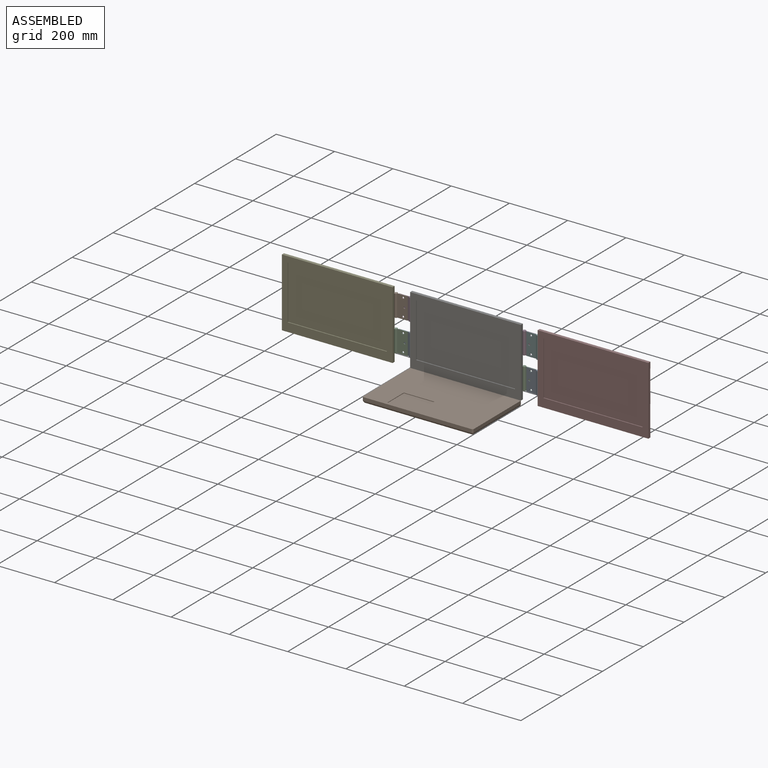
[diagram: assembled view]
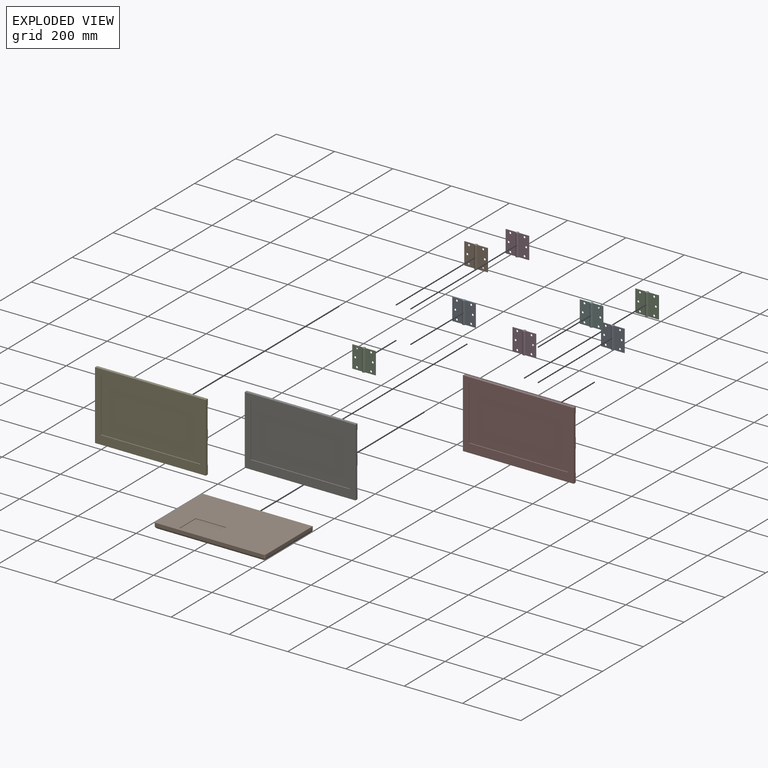
[diagram: exploded view]
GUIDED TOUR — MATED ASSEMBLY (Onshape document 534b0cb7e22ac7e6372c0f38, AutoMate assembly 534b0cb7e22ac7e6372c0f38_f17c7b90aa69325668de5390_352277028fc11308c769b280_default)

This assembly has 12 components, labeled P0..P11 below (a component is one placed occurrence of a part; the same part can appear more than once), held together by 11 mates. A mate is a constraint between two components; its type names the relative motion it leaves free:
  FASTENED — locks the two components together rigidly (no relative motion),
  REVOLUTE — leaves rotation about the listed axis free (a hinge).
Axis/direction vectors are unit vectors and 'through' points are millimeter coordinates, both in the assembly's world frame.

MATES
  1. FASTENED "Fastened 3": P11 <-> P5, direction (0.000, -1.000, 0.000) through (57.84, -117.65, 276.85) mm
  2. FASTENED "Fastened 10": P4 <-> P1, direction (0.000, 1.000, 0.000) through (-445.39, -119.65, 284.85) mm
  3. FASTENED "Fastened 2": P0 <-> P7, direction (0.000, -1.000, 0.000) through (122.25, -119.65, 174.85) mm
  4. FASTENED "Fastened 4": P3 <-> P1, direction (0.000, -1.000, 0.000) through (-380.98, -117.65, 276.85) mm
  5. FASTENED "Fastened 1": P7 <-> P5, direction (0.000, 1.000, 0.000) through (122.25, -119.65, 284.85) mm
  6. REVOLUTE "Revolute 1": P6 <-> P9, axis (-1.000, 0.000, 0.000) through (-351.57, -126.65, 69.85) mm
  7. FASTENED "Fastened 9": P0 <-> P2, direction (0.000, -1.000, 0.000) through (57.84, -117.65, 107.85) mm
  8. FASTENED "Fastened 8": P10 <-> P4, direction (-1.000, 0.000, 0.000) through (-445.39, -119.65, 99.85) mm
  9. FASTENED "Fastened 6": P3 <-> P6, direction (0.000, -1.000, 0.000) through (-316.57, -117.65, 284.85) mm
  10. FASTENED "Fastened 5": P11 <-> P6, direction (0.000, -1.000, 0.000) through (-6.57, -117.65, 284.85) mm
  11. FASTENED "Fastened 7": P8 <-> P6, direction (0.000, -1.000, 0.000) through (-316.57, -117.65, 174.85) mm

ASSEMBLY ORDER
  1. P11 — the base component [order verified]
  2. P3 [order verified]
  3. P8 [order verified]
  4. P2 [order verified]
  5. P10 [order verified]
  6. P5 [order verified]
  7. P1 [order verified]
  8. P0 [order verified]
  9. P6 [order verified]
  10. P4 [order verified]
  11. P7 [order verified]
  12. P9 [order verified]
Order-tag legend:
  [order verified] — this step's position reverses a verified removal order: the component was checked to insert without passing through the ones already placed.

Of the 12 components, 12 carry the full construction recipe — the FeatureScript program that regenerates the part's solid from scratch; the rest are supplied as boundary geometry only.
Each toured component is shown spotlighted twice — in the assembled view, then in the exploded view, where a leader line traces a displaced component back to its assembled socket (saturated green if recipe-attached, orange if geometry-only; every other component desaturated gray) — followed by its recipe or geometry summary and the mates that hold it.
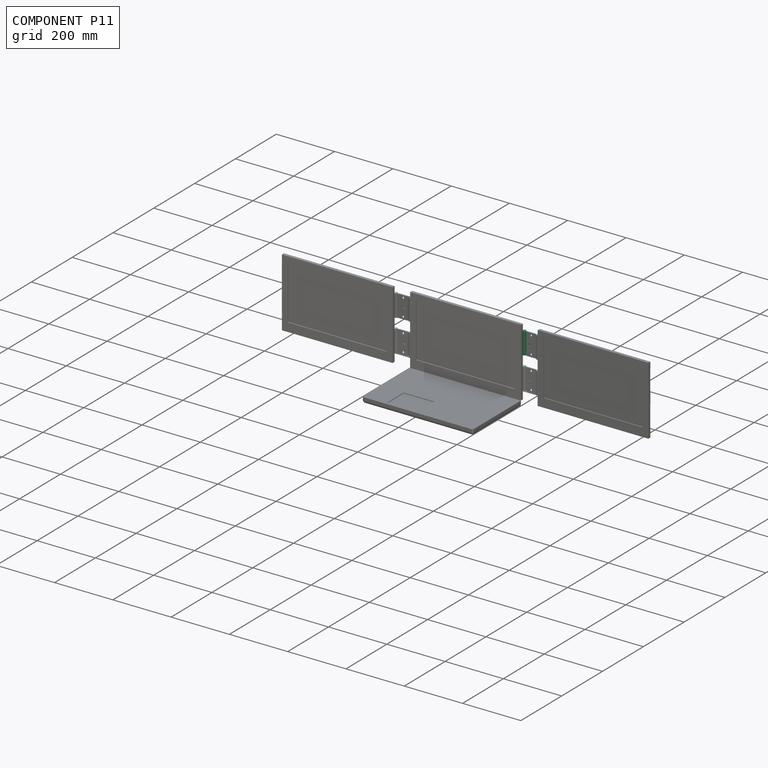
[diagram: component P11 — assembled]
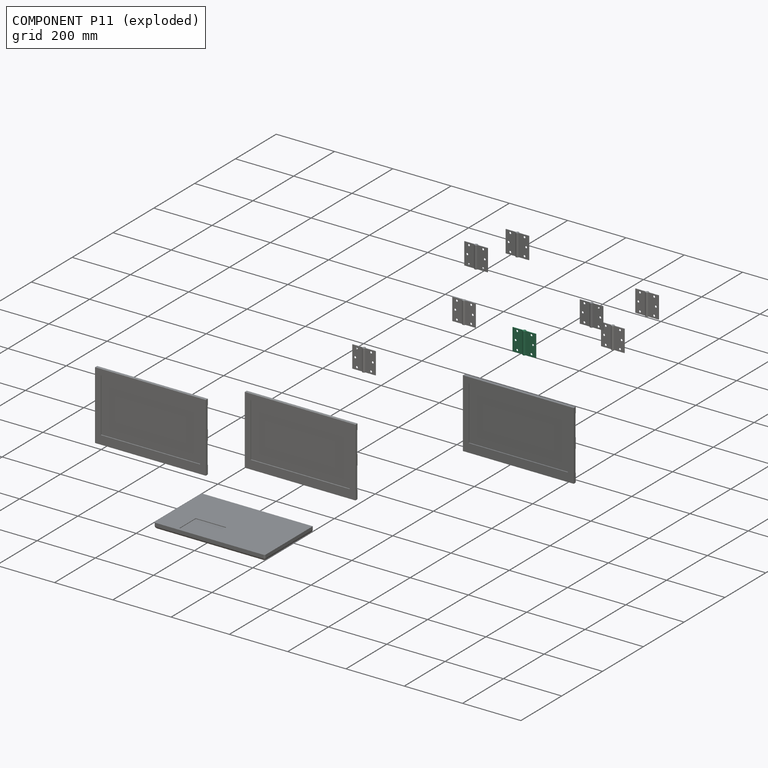
[diagram: component P11 — exploded]
COMPONENT P11 — same part as P0 (CADFS 00675521); its construction recipe is shown at P0.
Held by: FASTENED mate "Fastened 3" to P5; FASTENED mate "Fastened 5" to P6.
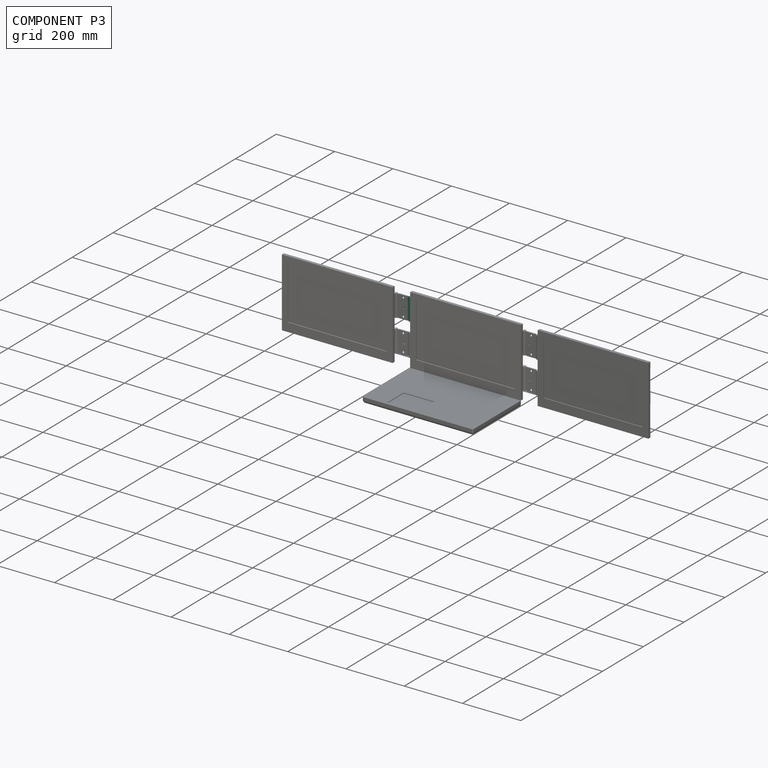
[diagram: component P3 — assembled]
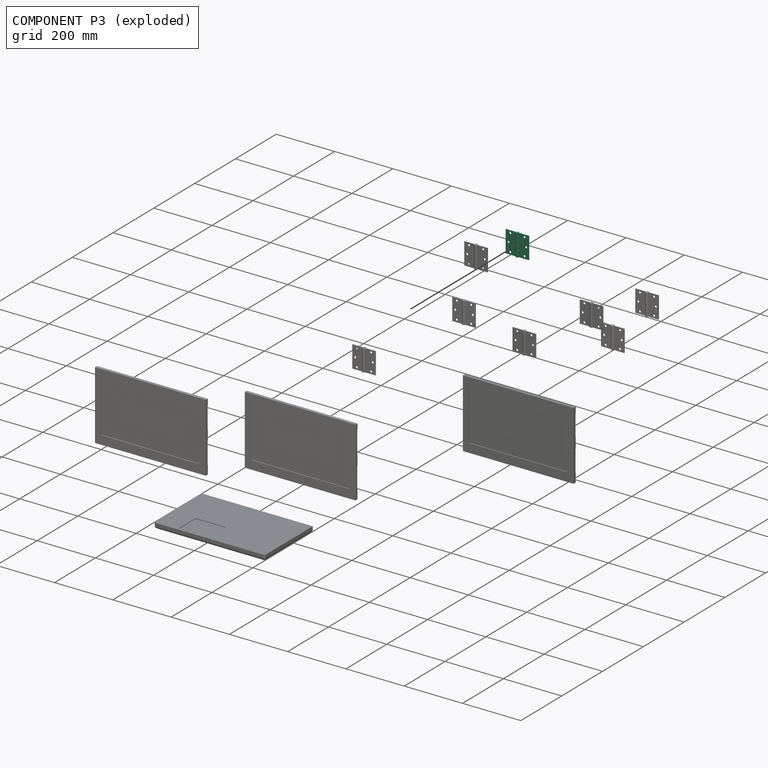
[diagram: component P3 — exploded]
COMPONENT P3 — same part as P0 (CADFS 00675521); its construction recipe is shown at P0.
Held by: FASTENED mate "Fastened 4" to P1; FASTENED mate "Fastened 6" to P6.
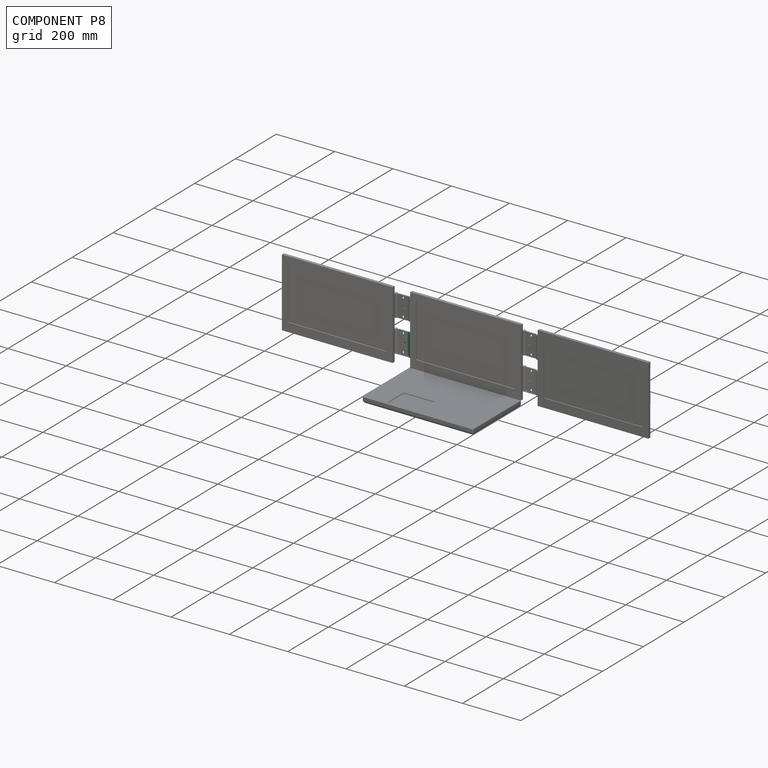
[diagram: component P8 — assembled]
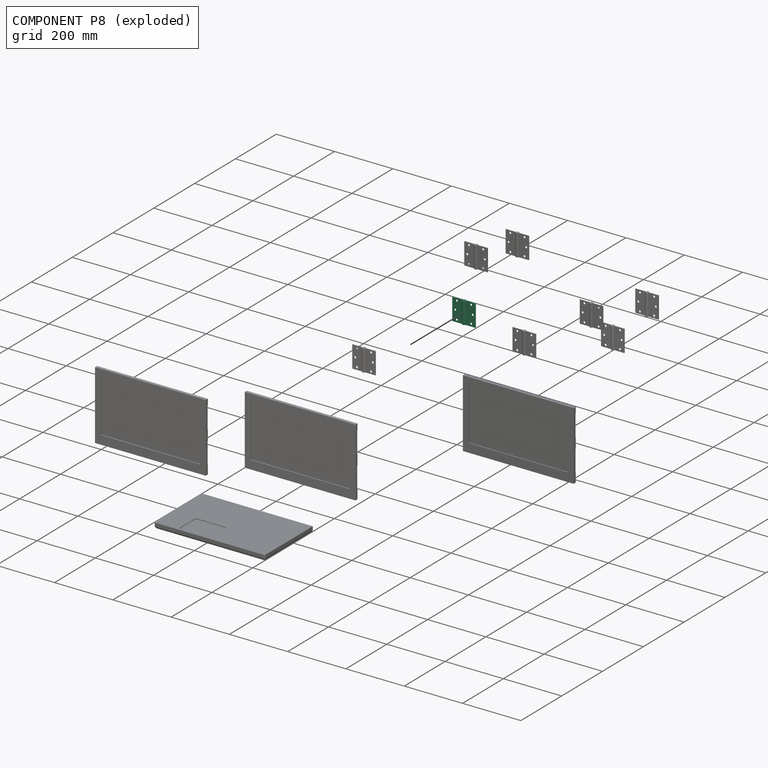
[diagram: component P8 — exploded]
COMPONENT P8 — same part as P0 (CADFS 00675521); its construction recipe is shown at P0.
Held by: FASTENED mate "Fastened 7" to P6.
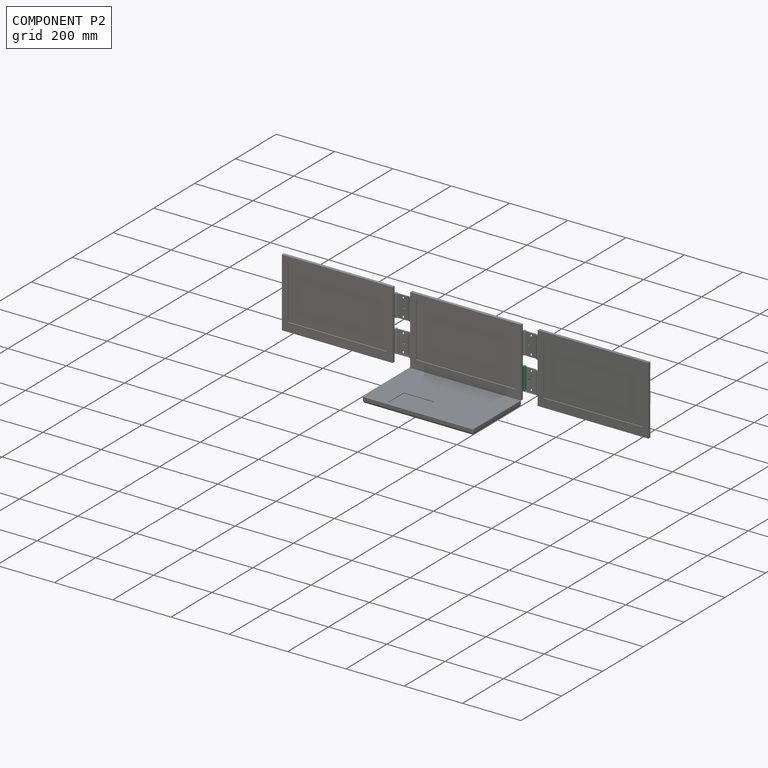
[diagram: component P2 — assembled]
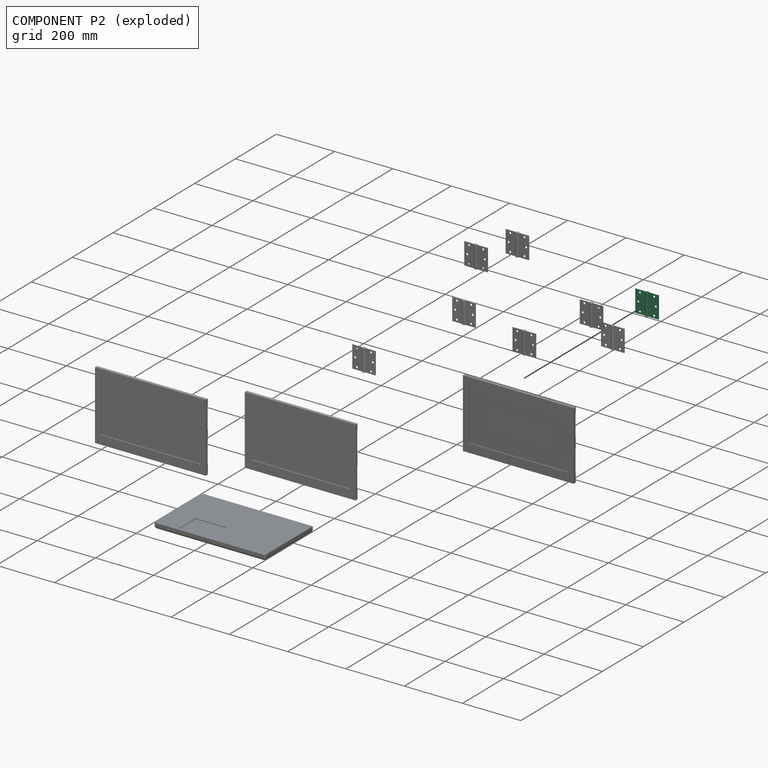
[diagram: component P2 — exploded]
COMPONENT P2 — same part as P0 (CADFS 00675521); its construction recipe is shown at P0.
Held by: FASTENED mate "Fastened 9" to P0.
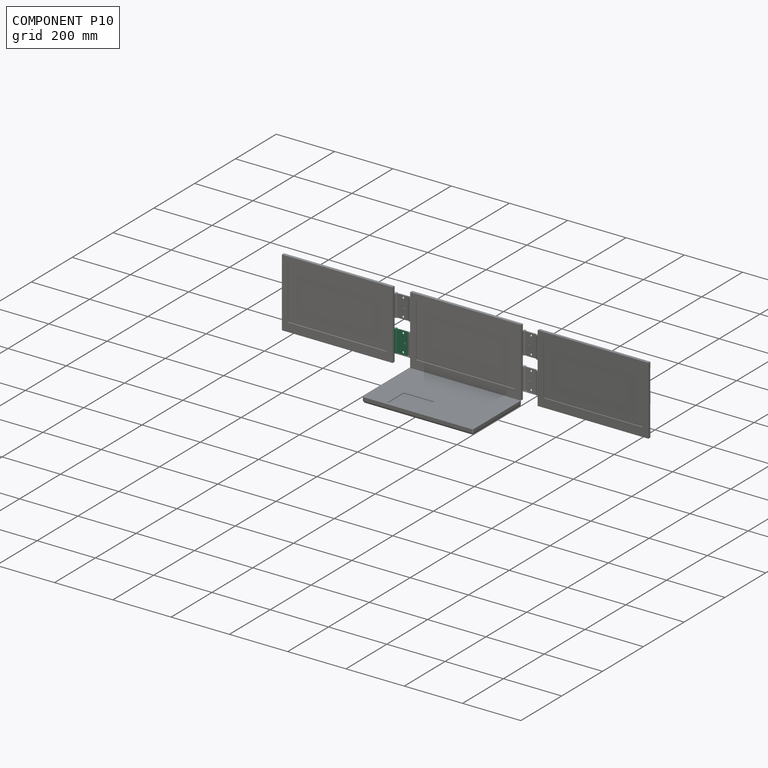
[diagram: component P10 — assembled]
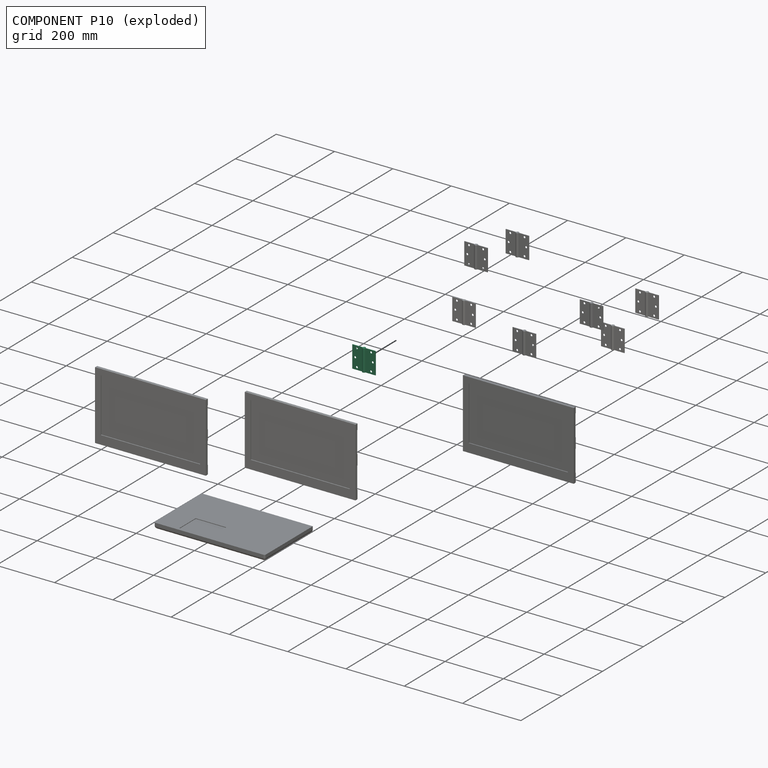
[diagram: component P10 — exploded]
COMPONENT P10 — same part as P0 (CADFS 00675521); its construction recipe is shown at P0.
Held by: FASTENED mate "Fastened 8" to P4.
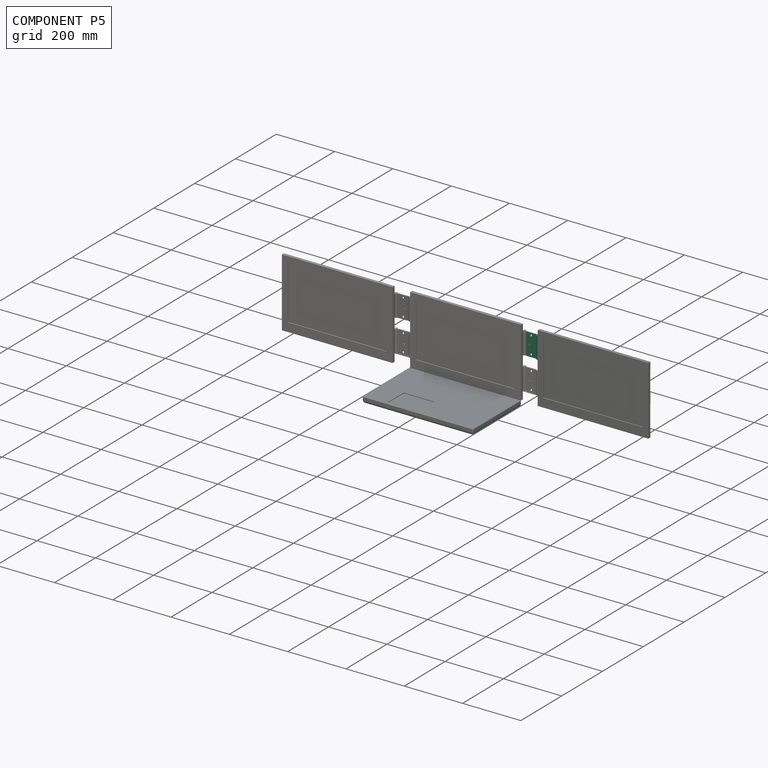
[diagram: component P5 — assembled]
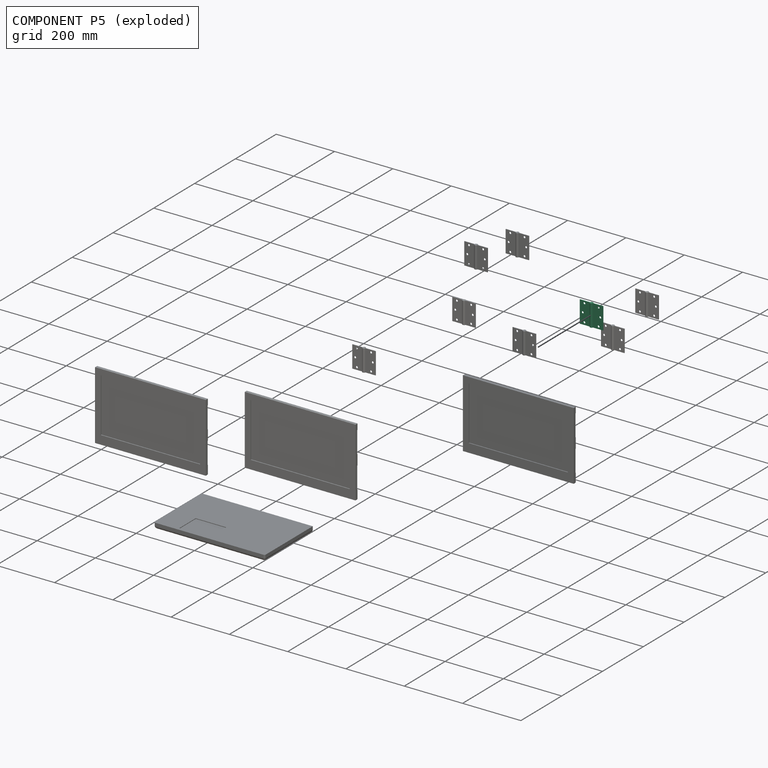
[diagram: component P5 — exploded]
COMPONENT P5 — same part as P0 (CADFS 00675521); its construction recipe is shown at P0.
Held by: FASTENED mate "Fastened 3" to P11; FASTENED mate "Fastened 1" to P7.
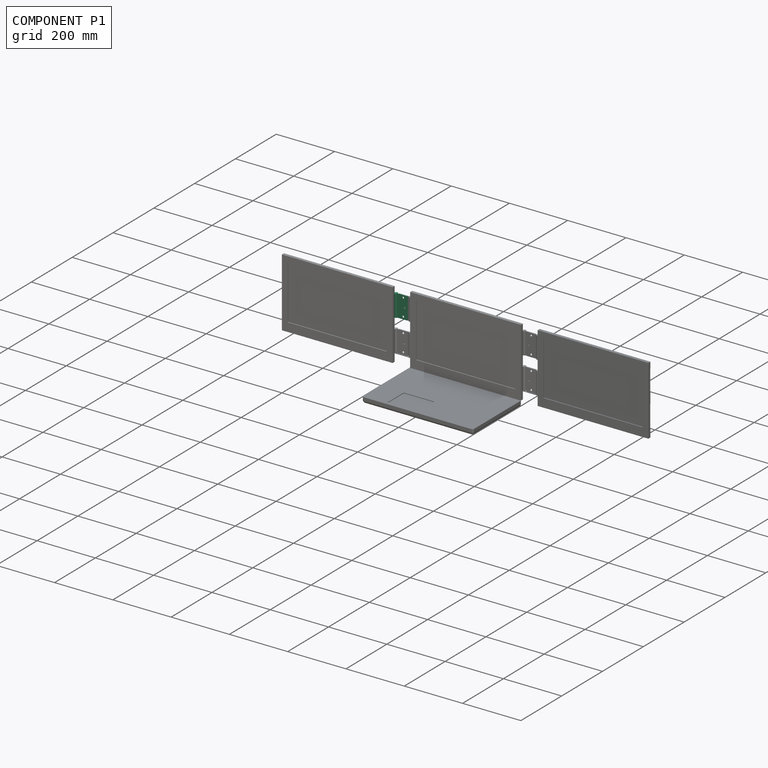
[diagram: component P1 — assembled]
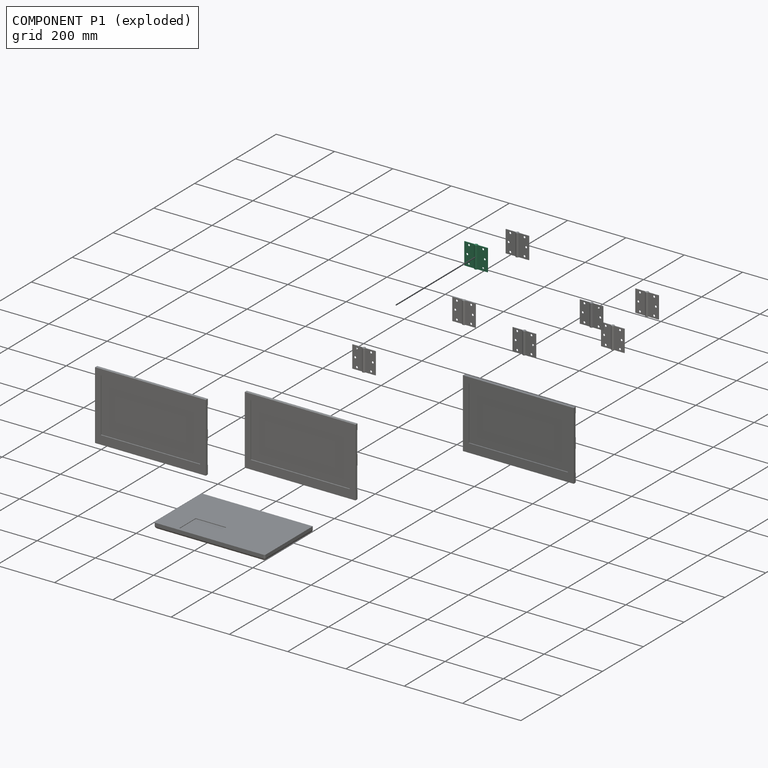
[diagram: component P1 — exploded]
COMPONENT P1 — same part as P0 (CADFS 00675521); its construction recipe is shown at P0.
Held by: FASTENED mate "Fastened 10" to P4; FASTENED mate "Fastened 4" to P3.
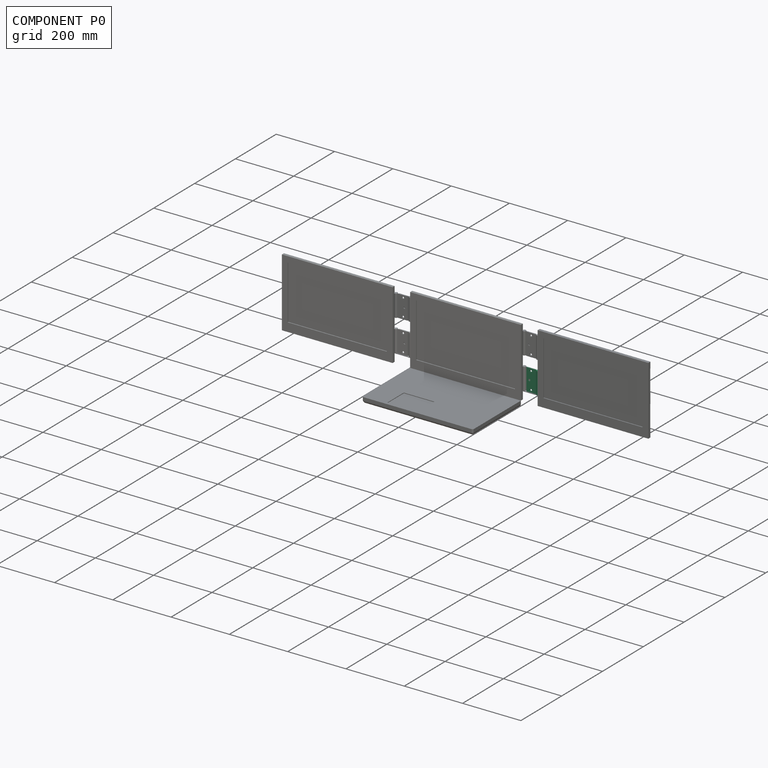
[diagram: component P0 — assembled]
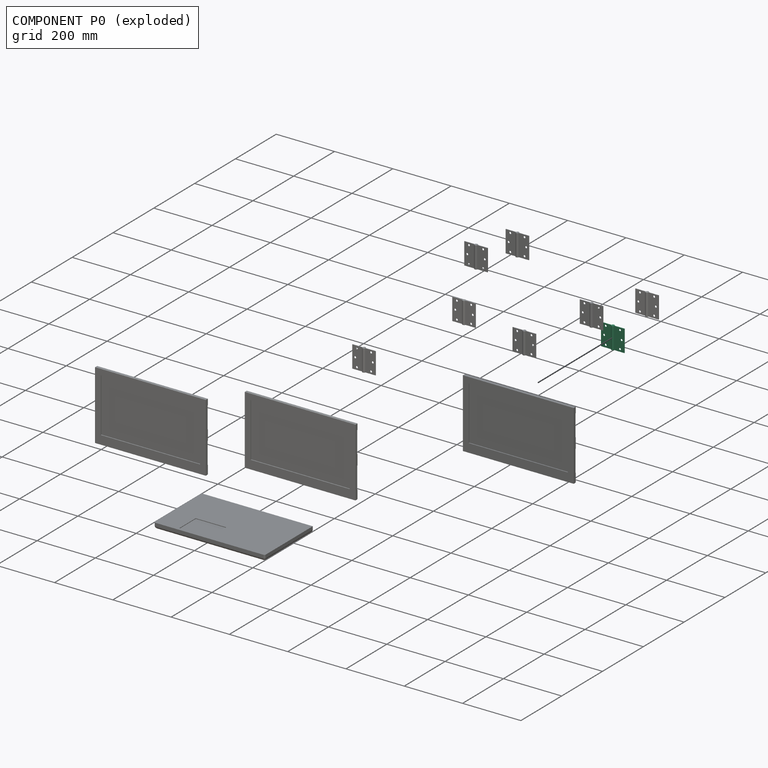
[diagram: component P0 — exploded]
COMPONENT P0 — recipe-attached (CADFS 00675521, mesh-verified: the recipe's output STEP matches this component's geometry to below the mesh-comparison resolution (tessellation chordal tolerance ~0.165 mm)).
Held by: FASTENED mate "Fastened 2" to P7; FASTENED mate "Fastened 9" to P2.
Construction recipe (FeatureScript — the CAD program that rebuilds this solid; sketch coordinates are in the units given by the * unit suffixes, e.g. mm):

FeatureScript 1511;
import(path : "onshape/std/geometry.fs", version : "1511.0");
import(path : "onshape/std/common.fs", version : "1511.0");
const mm = millimeter;
const VERTEX = EntityType.VERTEX;
const EDGE = EntityType.EDGE;
const FACE = EntityType.FACE;
const BODY = EntityType.BODY;
function v(x, y){return vector(x, y);}
function OD(order){return orderDisambiguation(order);}
function OSD(set){return originalSetDisambiguation(set);}
function TD(topology){return topologyDisambiguation(topology);}
function TDD(query){return trueDependencyDisambiguation(query);}
function sQuery(a, b, c) {return sketchEntityQuery(a, b, c);}

annotation { "Feature Type Name" : "Feature", "Feature Type Description" : "" }
export const myFeature = defineFeature(function(context is Context, id is Id, definition is map)
    precondition{}
    {
        {
            var Q0;
            Q0=qCreatedBy(makeId("Front.planeOp"),FACE);
            var sketch = newSketch(context, id + "F0", { "sketchPlane" : qUnion([Q0])});
            skLineSegment(sketch, "E0.bottom", {"start": v(-17.5, 37.5) * mm, "end": v(17.5, 37.5) * mm});
            skLineSegment(sketch, "E0.top", {"start": v(-17.5, -37.5) * mm, "end": v(17.5, -37.5) * mm});
            skLineSegment(sketch, "E0.left", {"start": v(-17.5, 37.5) * mm, "end": v(-17.5, -37.5) * mm});
            skLineSegment(sketch, "E0.right", {"start": v(17.5, 37.5) * mm, "end": v(17.5, -37.5) * mm});
            skSolve(sketch);
        }
        {
            var Q0;
            Q0 = qSketchRegion(id + "F0", true);
            extrude(context, id + "F1", {"entities" : qUnion([Q0]), "depth" : 2 * mm, "offsetDistance" : 25 * mm});
        }
        {
            var Q0;
            Q0=makeQuery(id+"F1.opExtrude","SWEPT_FACE",FACE,{"disambiguationData":[OSD([sQuery(id+"F0.wireOp",EDGE,"E0.bottom")])]});
            var sketch = newSketch(context, id + "F2", { "sketchPlane" : qUnion([Q0])});
            skLineSegment(sketch, "E1", {"start": v(-17.5, -1) * mm, "end": v(-22.5, -1) * mm, "construction": true});
            skCircle(sketch, "E2", {"center": v(-22.5, -1) * mm, "radius": 5.5 * mm});
            skSolve(sketch);
        }
        {
            var Q0;
            Q0 = qSketchRegion(id + "F2", true);
            extrude(context, id + "F3", {"entities" : qUnion([Q0]), "oppositeDirection" : true, "depth" : 75 * mm, "offsetDistance" : 25 * mm});
        }
        {
            var Q0;
            Q0=makeQuery(id+"F1.opExtrude","CAP_FACE",FACE,{"disambiguationData":[OSD([sQuery(id+"F0.wireOp",EDGE,"E0.bottom"),sQuery(id+"F0.wireOp",EDGE,"E0.top"),sQuery(id+"F0.wireOp",EDGE,"E0.left"),sQuery(id+"F0.wireOp",EDGE,"E0.right")])],"isStart":false});
            var sketch = newSketch(context, id + "F4", { "sketchPlane" : qUnion([Q0])});
            skLineSegment(sketch, "E3", {"start": v(-17.5, 37.5) * mm, "end": v(-27.5, 37.5) * mm, "construction": true});
            skLineSegment(sketch, "E4", {"start": v(-27.5, 37.5) * mm, "end": v(-27.5, -37.5) * mm});
            skLineSegment(sketch, "E5", {"start": v(-27.5, -37.5) * mm, "end": v(-62.5, -37.5) * mm});
            skLineSegment(sketch, "E6", {"start": v(-62.5, -37.5) * mm, "end": v(-62.5, 37.5) * mm});
            skLineSegment(sketch, "E7", {"start": v(-27.5, 37.5) * mm, "end": v(-62.5, 37.5) * mm});
            skSolve(sketch);
        }
        {
            var Q0;
            Q0 = qSketchRegion(id + "F4", true);
            extrude(context, id + "F5", {"entities" : qUnion([Q0]), "oppositeDirection" : true, "depth" : 2 * mm, "offsetDistance" : 25 * mm});
        }
        {
            var Q0;
            Q0=makeQuery(id+"F1.opExtrude","SWEPT_BODY",BODY,{"disambiguationData":[OSD([sQuery(id+"F0.wireOp",EDGE,"E0.bottom"),sQuery(id+"F0.wireOp",EDGE,"E0.top"),sQuery(id+"F0.wireOp",EDGE,"E0.left"),sQuery(id+"F0.wireOp",EDGE,"E0.right")])]});
            var Q1;
            Q1=makeQuery(id+"F3.opExtrude","SWEPT_BODY",BODY,{"disambiguationData":[OSD([sQuery(id+"F2.wireOp",EDGE,"E2")])]});
            var Q2;
            Q2=makeQuery(id+"F5.opExtrude","SWEPT_BODY",BODY,{"disambiguationData":[OSD([sQuery(id+"F4.wireOp",EDGE,"E4"),sQuery(id+"F4.wireOp",EDGE,"E5"),sQuery(id+"F4.wireOp",EDGE,"E6"),sQuery(id+"F4.wireOp",EDGE,"E7")])]});
            booleanBodies(context, id + "F6", {"operationType" : BooleanOperationType.UNION, "tools" : qUnion([Q0, Q1, Q2])});
        }
        {
            var Q0;
            Q0=makeQuery(id+"F1.opExtrude","CAP_FACE",FACE,{"disambiguationData":[OSD([sQuery(id+"F0.wireOp",EDGE,"E0.bottom"),sQuery(id+"F0.wireOp",EDGE,"E0.top"),sQuery(id+"F0.wireOp",EDGE,"E0.left"),sQuery(id+"F0.wireOp",EDGE,"E0.right")])],"isStart":false});
            var sketch = newSketch(context, id + "F7", { "sketchPlane" : qUnion([Q0])});
            skLineSegment(sketch, "E8", {"start": v(-17.1, -29.5) * mm, "end": v(1.9, -29.5) * mm, "construction": true});
            skCircle(sketch, "E9", {"center": v(1.9, -29.5) * mm, "radius": 3.5 * mm});
            skCircle(sketch, "E10.MirrorC", {"center": v(1.9, 29.5) * mm, "radius": 3.5 * mm});
            skLineSegment(sketch, "E11", {"start": v(17.5, 0) * mm, "end": v(7.5, 0) * mm, "construction": true});
            skCircle(sketch, "E12", {"center": v(7.5, 0) * mm, "radius": 3.5 * mm});
            skSolve(sketch);
        }
        {
            var Q0;
            Q0 = qSketchRegion(id + "F7", true);
            extrude(context, id + "F8", {"entities" : qUnion([Q0]), "operationType" : NewBodyOperationType.REMOVE, "endBound" : BoundingType.THROUGH_ALL, "oppositeDirection" : true, "depth" : 25 * mm, "offsetDistance" : 25 * mm});
        }
        {
            var Q0;
            Q0=makeQuery(id+"F5.opExtrude","CAP_FACE",FACE,{"disambiguationData":[OSD([sQuery(id+"F4.wireOp",EDGE,"E4"),sQuery(id+"F4.wireOp",EDGE,"E5"),sQuery(id+"F4.wireOp",EDGE,"E6"),sQuery(id+"F4.wireOp",EDGE,"E7")])],"isStart":true});
            var sketch = newSketch(context, id + "F9", { "sketchPlane" : qUnion([Q0])});
            skLineSegment(sketch, "E13", {"start": v(-27.9, -29.5) * mm, "end": v(-46.9, -29.5) * mm, "construction": true});
            skCircle(sketch, "E14", {"center": v(-46.9, -29.5) * mm, "radius": 3.5 * mm});
            skCircle(sketch, "E15.MirrorC", {"center": v(-46.9, 29.5) * mm, "radius": 3.5 * mm});
            skLineSegment(sketch, "E16", {"start": v(-62.5, 0) * mm, "end": v(-52.5, 0) * mm, "construction": true});
            skCircle(sketch, "E17", {"center": v(-52.5, 0) * mm, "radius": 3.5 * mm});
            skSolve(sketch);
        }
        {
            var Q0;
            Q0 = qSketchRegion(id + "F9", true);
            extrude(context, id + "F10", {"entities" : qUnion([Q0]), "operationType" : NewBodyOperationType.REMOVE, "endBound" : BoundingType.THROUGH_ALL, "oppositeDirection" : true, "depth" : 25 * mm, "offsetDistance" : 25 * mm});
        }
    });
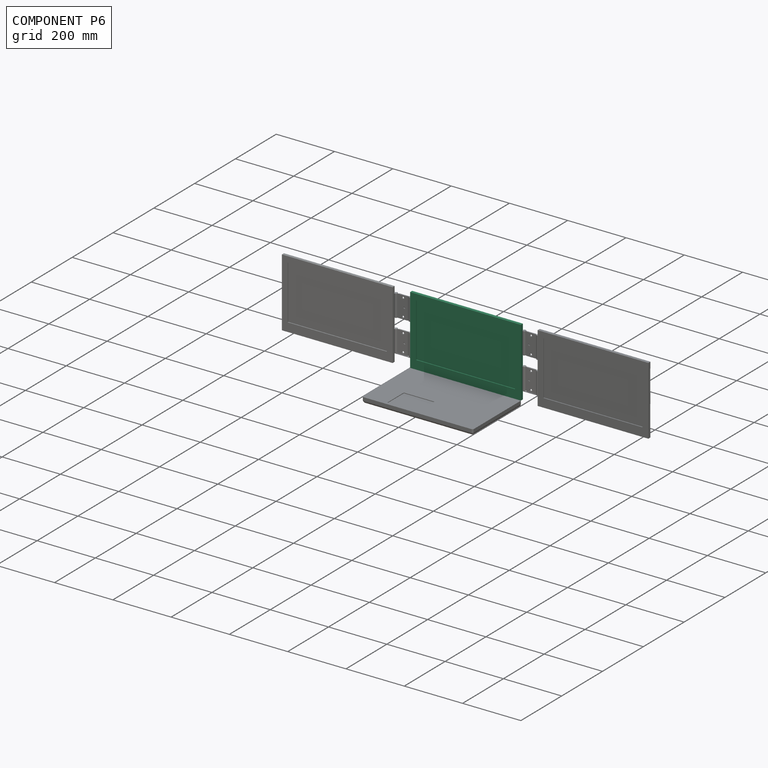
[diagram: component P6 — assembled]
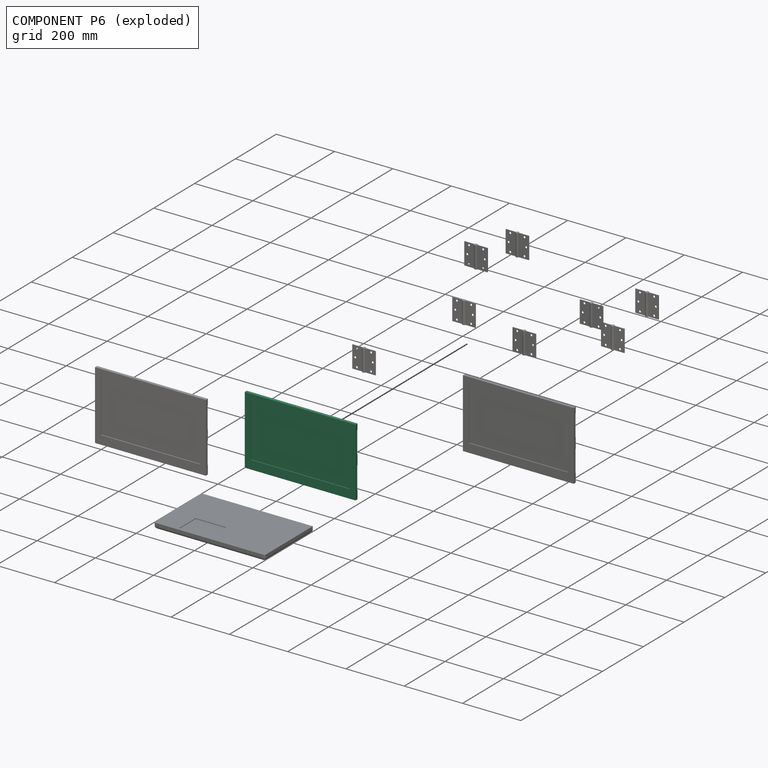
[diagram: component P6 — exploded]
COMPONENT P6 — same part as P4 (CADFS 00675519); its construction recipe is shown at P4.
Held by: REVOLUTE mate "Revolute 1" to P9; FASTENED mate "Fastened 6" to P3; FASTENED mate "Fastened 5" to P11; FASTENED mate "Fastened 7" to P8.
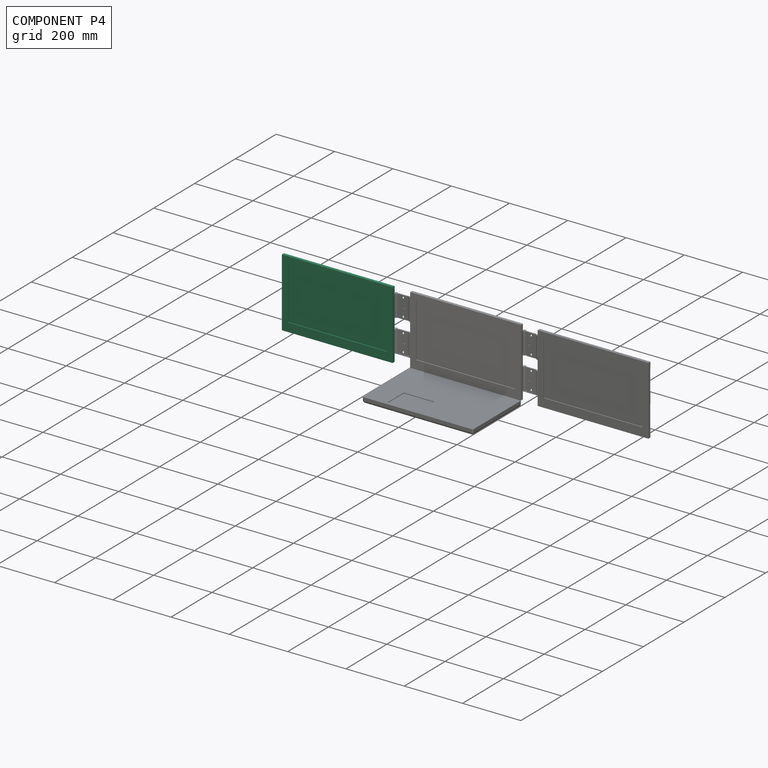
[diagram: component P4 — assembled]
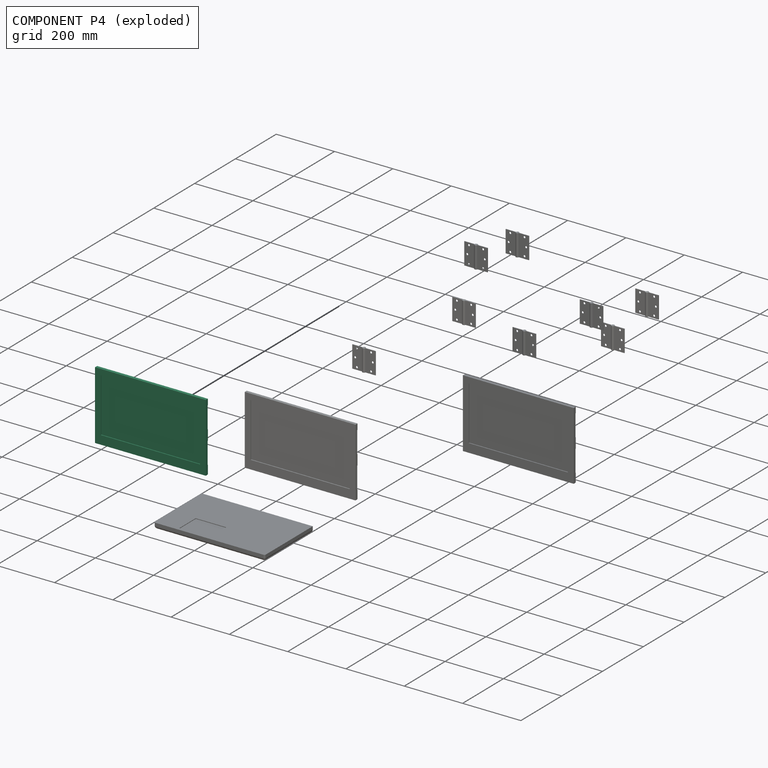
[diagram: component P4 — exploded]
COMPONENT P4 — recipe-attached (CADFS 00675519, mesh-verified: the recipe's output STEP matches this component's geometry to below the mesh-comparison resolution (tessellation chordal tolerance ~0.67 mm)).
Held by: FASTENED mate "Fastened 10" to P1; FASTENED mate "Fastened 8" to P10.
Construction recipe (FeatureScript — the CAD program that rebuilds this solid; sketch coordinates are in the units given by the * unit suffixes, e.g. mm):

FeatureScript 1511;
import(path : "onshape/std/geometry.fs", version : "1511.0");
import(path : "onshape/std/common.fs", version : "1511.0");
const mm = millimeter;
const VERTEX = EntityType.VERTEX;
const EDGE = EntityType.EDGE;
const FACE = EntityType.FACE;
const BODY = EntityType.BODY;
function v(x, y){return vector(x, y);}
function OD(order){return orderDisambiguation(order);}
function OSD(set){return originalSetDisambiguation(set);}
function TD(topology){return topologyDisambiguation(topology);}
function TDD(query){return trueDependencyDisambiguation(query);}
function sQuery(a, b, c) {return sketchEntityQuery(a, b, c);}

annotation { "Feature Type Name" : "Feature", "Feature Type Description" : "" }
export const myFeature = defineFeature(function(context is Context, id is Id, definition is map)
    precondition{}
    {
        {
            var Q0;
            Q0=qCreatedBy(makeId("Front.planeOp"),FACE);
            var sketch = newSketch(context, id + "F0", { "sketchPlane" : qUnion([Q0])});
            skLineSegment(sketch, "E0.bottom", {"start": v(-190, 117.5) * mm, "end": v(190, 117.5) * mm});
            skLineSegment(sketch, "E0.top", {"start": v(-190, -117.5) * mm, "end": v(190, -117.5) * mm});
            skLineSegment(sketch, "E0.left", {"start": v(-190, 117.5) * mm, "end": v(-190, -117.5) * mm});
            skLineSegment(sketch, "E0.right", {"start": v(190, 117.5) * mm, "end": v(190, -117.5) * mm});
            skSolve(sketch);
        }
        {
            var Q0;
            Q0 = qSketchRegion(id + "F0", true);
            extrude(context, id + "F1", {"entities" : qUnion([Q0]), "depth" : 10 * mm, "offsetDistance" : 25 * mm});
        }
        {
            var Q0;
            Q0=makeQuery(id+"F1.opExtrude","CAP_FACE",FACE,{"disambiguationData":[OSD([sQuery(id+"F0.wireOp",EDGE,"E0.bottom"),sQuery(id+"F0.wireOp",EDGE,"E0.top"),sQuery(id+"F0.wireOp",EDGE,"E0.left"),sQuery(id+"F0.wireOp",EDGE,"E0.right")])],"isStart":false});
            var sketch = newSketch(context, id + "F2", { "sketchPlane" : qUnion([Q0])});
            skLineSegment(sketch, "E1.right", {"start": v(170, 97.5) * mm, "end": v(170, -87.5) * mm});
            skLineSegment(sketch, "E2", {"start": v(170, -87.5) * mm, "end": v(-170, -87.5) * mm});
            skLineSegment(sketch, "E3", {"start": v(170, 97.5) * mm, "end": v(-170, 97.5) * mm});
            skLineSegment(sketch, "E4", {"start": v(-170, -87.5) * mm, "end": v(-170, 97.5) * mm});
            skSolve(sketch);
        }
        {
            var Q0;
            Q0 = qSketchRegion(id + "F2", true);
            extrude(context, id + "F3", {"entities" : qUnion([Q0]), "operationType" : NewBodyOperationType.REMOVE, "oppositeDirection" : true, "depth" : 3 * mm, "offsetDistance" : 25 * mm});
        }
        {
            var Q0;
            Q0=makeQuery(id+"F1.opExtrude","CAP_FACE",FACE,{"disambiguationData":[OSD([sQuery(id+"F0.wireOp",EDGE,"E0.bottom"),sQuery(id+"F0.wireOp",EDGE,"E0.top"),sQuery(id+"F0.wireOp",EDGE,"E0.left"),sQuery(id+"F0.wireOp",EDGE,"E0.right")])],"isStart":true});
            var sketch = newSketch(context, id + "F4", { "sketchPlane" : qUnion([Q0])});
            skLineSegment(sketch, "E5", {"start": v(-190, 97.5) * mm, "end": v(-155, 97.5) * mm});
            skLineSegment(sketch, "E6", {"start": v(-155, 97.5) * mm, "end": v(-155, 22.5) * mm});
            skLineSegment(sketch, "E7", {"start": v(-155, 22.5) * mm, "end": v(-190, 22.5) * mm});
            skLineSegment(sketch, "E8", {"start": v(-190, -12.5) * mm, "end": v(-155, -12.5) * mm});
            skLineSegment(sketch, "E9", {"start": v(-155, -12.5) * mm, "end": v(-155, -87.5) * mm});
            skLineSegment(sketch, "E10", {"start": v(-155, -87.5) * mm, "end": v(-190, -87.5) * mm});
            skLineSegment(sketch, "E11", {"start": v(-190, 22.5) * mm, "end": v(-190, 97.5) * mm});
            skLineSegment(sketch, "E12", {"start": v(-190, -12.5) * mm, "end": v(-190, -87.5) * mm});
            skLineSegment(sketch, "E13", {"start": v(190, -87.5) * mm, "end": v(155, -87.5) * mm});
            skLineSegment(sketch, "E14", {"start": v(155, -87.5) * mm, "end": v(155, -12.5) * mm});
            skLineSegment(sketch, "E15", {"start": v(155, -12.5) * mm, "end": v(190, -12.5) * mm});
            skLineSegment(sketch, "E16", {"start": v(190, 97.5) * mm, "end": v(155, 97.5) * mm});
            skLineSegment(sketch, "E17", {"start": v(155, 97.5) * mm, "end": v(155, 22.5) * mm});
            skLineSegment(sketch, "E18", {"start": v(155, 22.5) * mm, "end": v(190, 22.5) * mm});
            skLineSegment(sketch, "E19", {"start": v(190, -87.5) * mm, "end": v(190, -12.5) * mm});
            skLineSegment(sketch, "E20", {"start": v(190, 22.5) * mm, "end": v(190, 97.5) * mm});
            skSolve(sketch);
        }
        {
            var Q0;
            Q0 = qSketchRegion(id + "F4", true);
            extrude(context, id + "F5", {"entities" : qUnion([Q0]), "operationType" : NewBodyOperationType.REMOVE, "oppositeDirection" : true, "depth" : 1 * mm, "offsetDistance" : 25 * mm});
        }
    });
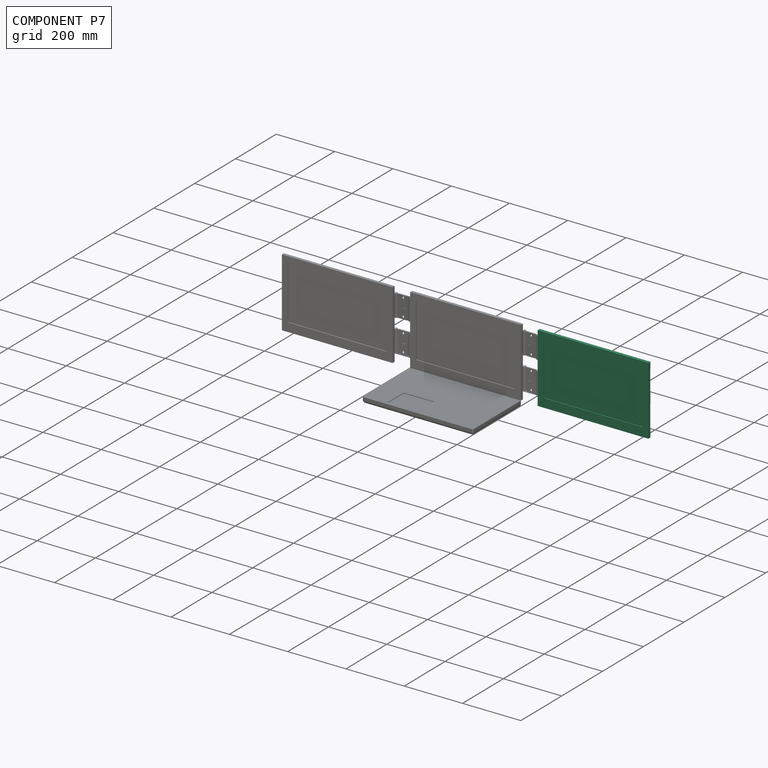
[diagram: component P7 — assembled]
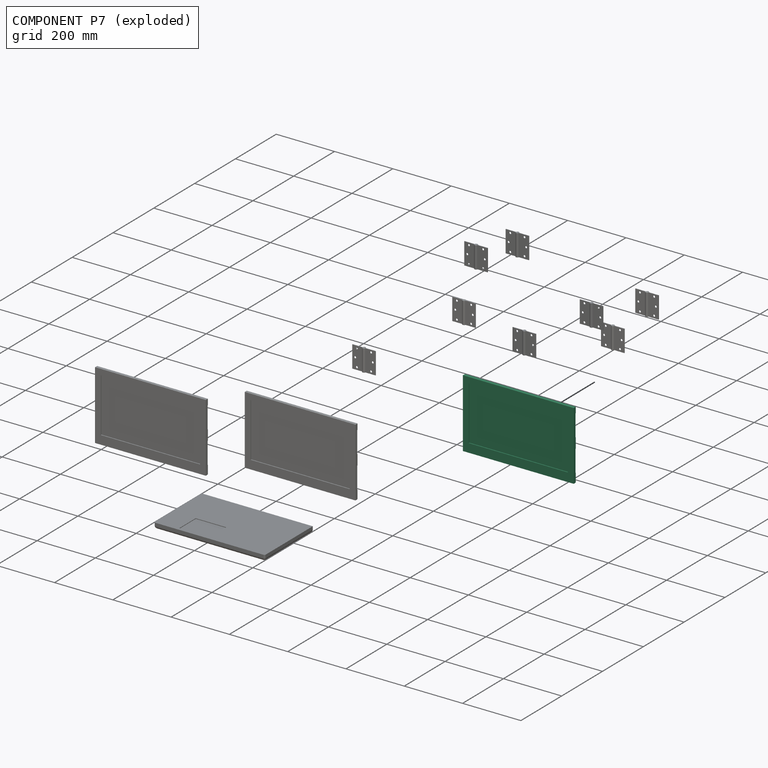
[diagram: component P7 — exploded]
COMPONENT P7 — same part as P4 (CADFS 00675519); its construction recipe is shown at P4.
Held by: FASTENED mate "Fastened 2" to P0; FASTENED mate "Fastened 1" to P5.
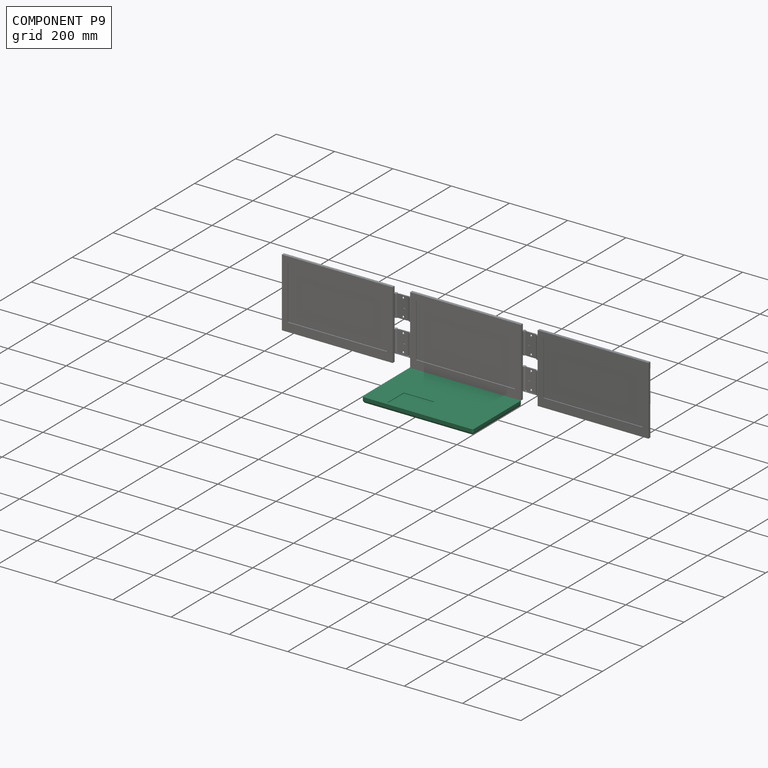
[diagram: component P9 — assembled]
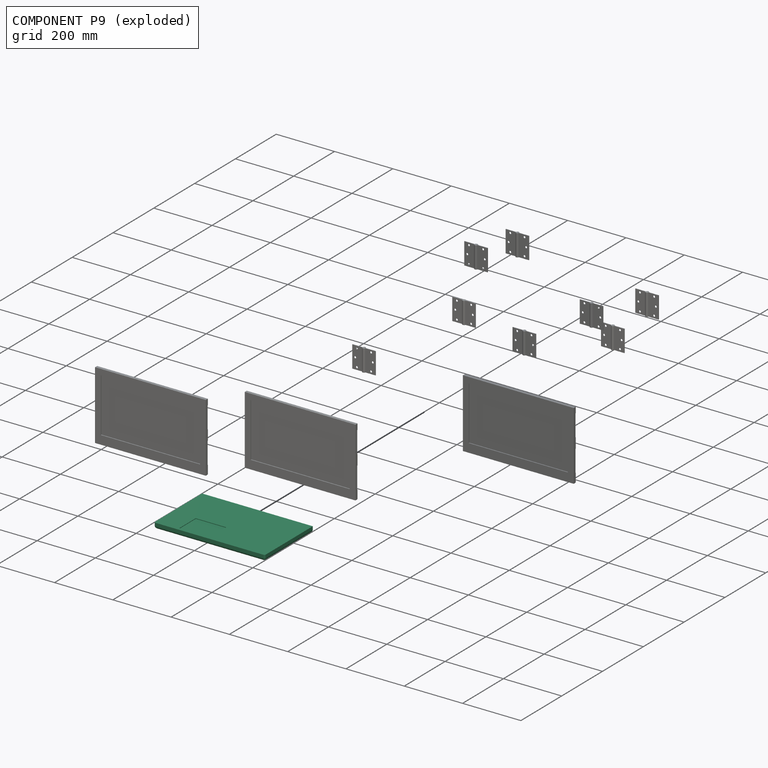
[diagram: component P9 — exploded]
COMPONENT P9 — recipe-attached (CADFS 00675520, mesh-verified: the recipe's output STEP matches this component's geometry to below the mesh-comparison resolution (tessellation chordal tolerance ~0.671 mm)).
Held by: REVOLUTE mate "Revolute 1" to P6.
Construction recipe (FeatureScript — the CAD program that rebuilds this solid; sketch coordinates are in the units given by the * unit suffixes, e.g. mm):

FeatureScript 1511;
import(path : "onshape/std/geometry.fs", version : "1511.0");
import(path : "onshape/std/common.fs", version : "1511.0");
const mm = millimeter;
const VERTEX = EntityType.VERTEX;
const EDGE = EntityType.EDGE;
const FACE = EntityType.FACE;
const BODY = EntityType.BODY;
function v(x, y){return vector(x, y);}
function OD(order){return orderDisambiguation(order);}
function OSD(set){return originalSetDisambiguation(set);}
function TD(topology){return topologyDisambiguation(topology);}
function TDD(query){return trueDependencyDisambiguation(query);}
function sQuery(a, b, c) {return sketchEntityQuery(a, b, c);}

annotation { "Feature Type Name" : "Feature", "Feature Type Description" : "" }
export const myFeature = defineFeature(function(context is Context, id is Id, definition is map)
    precondition{}
    {
        {
            var Q0;
            Q0=qCreatedBy(makeId("Top.planeOp"),FACE);
            var sketch = newSketch(context, id + "F0", { "sketchPlane" : qUnion([Q0])});
            skLineSegment(sketch, "E0", {"start": v(-190, 117.5) * mm, "end": v(190, 117.5) * mm});
            skLineSegment(sketch, "E1", {"start": v(-190, 117.5) * mm, "end": v(-190, -117.5) * mm});
            skLineSegment(sketch, "E2", {"start": v(-190, -117.5) * mm, "end": v(190, -117.5) * mm});
            skLineSegment(sketch, "E3", {"start": v(190, 117.5) * mm, "end": v(190, -117.5) * mm});
            skSolve(sketch);
        }
        {
            var Q0;
            Q0 = qSketchRegion(id + "F0", true);
            extrude(context, id + "F1", {"entities" : qUnion([Q0]), "depth" : 20 * mm, "offsetDistance" : 25 * mm});
        }
        {
            var Q0;
            Q0=makeQuery(id+"F1.opExtrude","CAP_FACE",FACE,{"disambiguationData":[OSD([sQuery(id+"F0.wireOp",EDGE,"E0"),sQuery(id+"F0.wireOp",EDGE,"E1"),sQuery(id+"F0.wireOp",EDGE,"E2"),sQuery(id+"F0.wireOp",EDGE,"E3")])],"isStart":false});
            var sketch = newSketch(context, id + "F2", { "sketchPlane" : qUnion([Q0])});
            skLineSegment(sketch, "E4.bottom", {"start": v(-110, -107.5) * mm, "end": v(-5, -107.5) * mm});
            skLineSegment(sketch, "E4.top", {"start": v(-110, -27.5) * mm, "end": v(-5, -27.5) * mm});
            skLineSegment(sketch, "E4.left", {"start": v(-110, -107.5) * mm, "end": v(-110, -27.5) * mm});
            skLineSegment(sketch, "E4.right", {"start": v(-5, -107.5) * mm, "end": v(-5, -27.5) * mm});
            skSolve(sketch);
        }
        {
            var Q0;
            Q0 = qSketchRegion(id + "F2", true);
            extrude(context, id + "F3", {"entities" : qUnion([Q0]), "operationType" : NewBodyOperationType.REMOVE, "oppositeDirection" : true, "depth" : 2 * mm, "offsetDistance" : 25 * mm});
        }
        {
            var Q0;
            Q0=makeQuery(id+"F1.opExtrude","SWEPT_EDGE",EDGE,{"disambiguationData":[OSD([sQuery(id+"F0.wireOp",EDGE,"E1"),sQuery(id+"F0.wireOp",EDGE,"E2")])]});
            var Q1;
            Q1=makeQuery(id+"F1.opExtrude","SWEPT_EDGE",EDGE,{"disambiguationData":[OSD([sQuery(id+"F0.wireOp",EDGE,"E2"),sQuery(id+"F0.wireOp",EDGE,"E3")])]});
            fillet(context, id + "F4", {"entities" : qUnion([Q0, Q1]), "radius" : 5 * mm, "tangentPropagation" : true, "allowEdgeOverflow" : false});
        }
        {
            var Q0;
            Q0=makeQuery(id+"F1.opExtrude","CAP_EDGE",EDGE,{"disambiguationData":[OSD([sQuery(id+"F0.wireOp",EDGE,"E2")])],"isStart":true});
            fillet(context, id + "F5", {"entities" : qUnion([Q0]), "radius" : 10 * mm, "tangentPropagation" : true, "allowEdgeOverflow" : false});
        }
    });
PROVENANCE & LICENSES
Assembly (occurrences, transforms, mates, per-part STEP geometry): AutoMate dataset, Zenodo record 7776208, CC0.
Construction recipes: CADFS (HuggingFace VladPyatov/CADFS, CC-BY-4.0, layered over the ABC dataset), FeatureScript reconstruction programs keyed by ABC model id.
Join: ABC meta listings map ABC model id -> Onshape documentId; within a shared document, parts are matched by geometric signature (bounding-box dims + volume at 0.1% relative tolerance, exact B-rep face/solid counts).
Verification: 12 of this assembly's 12 components carry a recipe attachment, and every attachment is mesh-verified: the CADFS STEP and the AutoMate member STEP were compared as meshes in their shared local frame (symmetric sampled-point-to-mesh distance); worst across the 12 attachments: below the mesh-comparison resolution (tessellation chordal tolerance ~0.671 mm) on a 447 mm part.
Renders: orthographic iso camera (az 35 / el 25); the floor grid conveys scale (grid pitch printed in each image; no ruler). In the exploded view each component is displaced by its stored offset vector: the offsets alone carry the explosion direction (mate normal/axis signs are not orientation cues and do not encode it), and separation distances are assigned per mate-chain, not proportionally to assembly-order depth.
